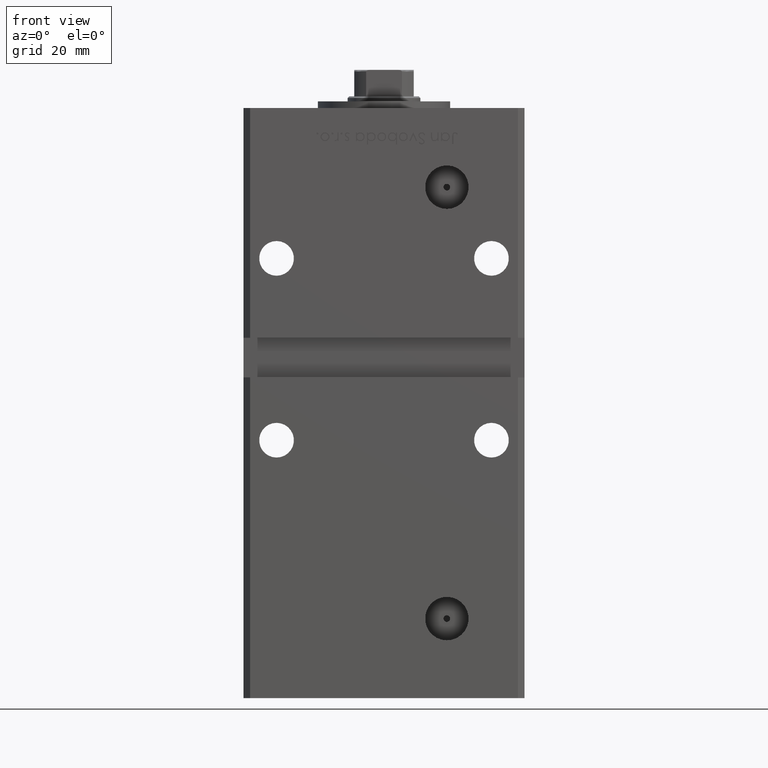
[diagram: clean part render]
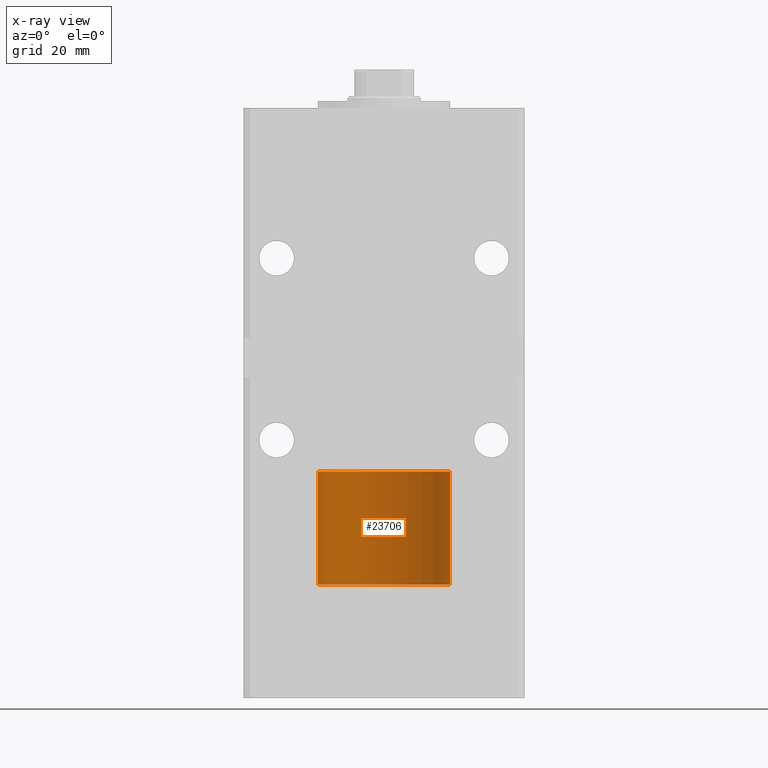
[diagram: x-ray — body ghosted, one internal face saturated and labeled with its STEP entity id]
A machine part, front view, then the same camera in x-ray: the body is ghosted and one INTERNAL B-rep face — a face not visible from any outside direction — is saturated and labeled: STEP entity #23706.
In plain terms, the highlighted cylindrical surface (partial cylindrical patch) has radius 20 mm, axis along (-0, -0, -1).
Its self-contained STEP definition (entity closure, byte-faithful):
#1968 = CIRCLE ( 'NONE', #32047, 20.00000000000000000 ) ;
#2326 = CYLINDRICAL_SURFACE ( 'NONE', #28260, 20.00000000000000000 ) ;
#7403 = VERTEX_POINT ( 'NONE', #49773 ) ;
#10187 = ORIENTED_EDGE ( 'NONE', *, *, #40387, .F. ) ;
#12581 = EDGE_LOOP ( 'NONE', ( #10187, #29525, #17253, #47310 ) ) ;
#13086 = VERTEX_POINT ( 'NONE', #36480 ) ;
#14138 = DIRECTION ( 'NONE',  ( 1.000000000000000000, 0.000000000000000000, 0.000000000000000000 ) ) ;
#15617 = CARTESIAN_POINT ( 'NONE',  ( 0.000000000000000000, 0.000000000000000000, 0.000000000000000000 ) ) ;
#17253 = ORIENTED_EDGE ( 'NONE', *, *, #47980, .T. ) ;
#20614 = VECTOR ( 'NONE', #33126, 1000.000000000000000 ) ;
#21711 = CARTESIAN_POINT ( 'NONE',  ( 0.000000000000000000, 0.000000000000000000, 34.25000000000000000 ) ) ;
#21729 = VERTEX_POINT ( 'NONE', #51658 ) ;
#23278 = DIRECTION ( 'NONE',  ( -0.000000000000000000, -0.000000000000000000, -1.000000000000000000 ) ) ;
#23368 = VERTEX_POINT ( 'NONE', #44460 ) ;
#23706 = ADVANCED_FACE ( 'NONE', ( #42951 ), #2326, .T. ) ;
#26015 = DIRECTION ( 'NONE',  ( -1.000000000000000000, 0.000000000000000000, 0.000000000000000000 ) ) ;
#26776 = CARTESIAN_POINT ( 'NONE',  ( 20.00000000000000000, 2.449293598294706513E-15, 34.25000000000000000 ) ) ;
#27313 = LINE ( 'NONE', #26776, #34780 ) ;
#27527 = EDGE_CURVE ( 'NONE', #23368, #21729, #28551, .T. ) ;
#28260 = AXIS2_PLACEMENT_3D ( 'NONE', #21711, #34620, #26015 ) ;
#28271 = DIRECTION ( 'NONE',  ( 1.000000000000000000, 0.000000000000000000, 0.000000000000000000 ) ) ;
#28551 = LINE ( 'NONE', #29100, #20614 ) ;
#29100 = CARTESIAN_POINT ( 'NONE',  ( -20.00000000000000000, 0.000000000000000000, 34.25000000000000000 ) ) ;
#29525 = ORIENTED_EDGE ( 'NONE', *, *, #45932, .T. ) ;
#32047 = AXIS2_PLACEMENT_3D ( 'NONE', #42131, #50997, #14138 ) ;
#33126 = DIRECTION ( 'NONE',  ( -0.000000000000000000, -0.000000000000000000, -1.000000000000000000 ) ) ;
#34620 = DIRECTION ( 'NONE',  ( -0.000000000000000000, -0.000000000000000000, -1.000000000000000000 ) ) ;
#34780 = VECTOR ( 'NONE', #23278, 1000.000000000000000 ) ;
#36480 = CARTESIAN_POINT ( 'NONE',  ( 20.00000000000000000, 2.449293598294706513E-15, 0.000000000000000000 ) ) ;
#39021 = AXIS2_PLACEMENT_3D ( 'NONE', #15617, #53016, #28271 ) ;
#40387 = EDGE_CURVE ( 'NONE', #7403, #23368, #1968, .T. ) ;
#42131 = CARTESIAN_POINT ( 'NONE',  ( 0.000000000000000000, 0.000000000000000000, 34.25000000000000000 ) ) ;
#42951 = FACE_OUTER_BOUND ( 'NONE', #12581, .T. ) ;
#44460 = CARTESIAN_POINT ( 'NONE',  ( -20.00000000000000000, 0.000000000000000000, 34.25000000000000000 ) ) ;
#45932 = EDGE_CURVE ( 'NONE', #7403, #13086, #27313, .T. ) ;
#47310 = ORIENTED_EDGE ( 'NONE', *, *, #27527, .F. ) ;
#47980 = EDGE_CURVE ( 'NONE', #13086, #21729, #51931, .T. ) ;
#49773 = CARTESIAN_POINT ( 'NONE',  ( 20.00000000000000000, 2.449293598294706513E-15, 34.25000000000000000 ) ) ;
#50997 = DIRECTION ( 'NONE',  ( 0.000000000000000000, 0.000000000000000000, 1.000000000000000000 ) ) ;
#51658 = CARTESIAN_POINT ( 'NONE',  ( -20.00000000000000000, 0.000000000000000000, 0.000000000000000000 ) ) ;
#51931 = CIRCLE ( 'NONE', #39021, 20.00000000000000000 ) ;
#53016 = DIRECTION ( 'NONE',  ( 0.000000000000000000, 0.000000000000000000, 1.000000000000000000 ) ) ;